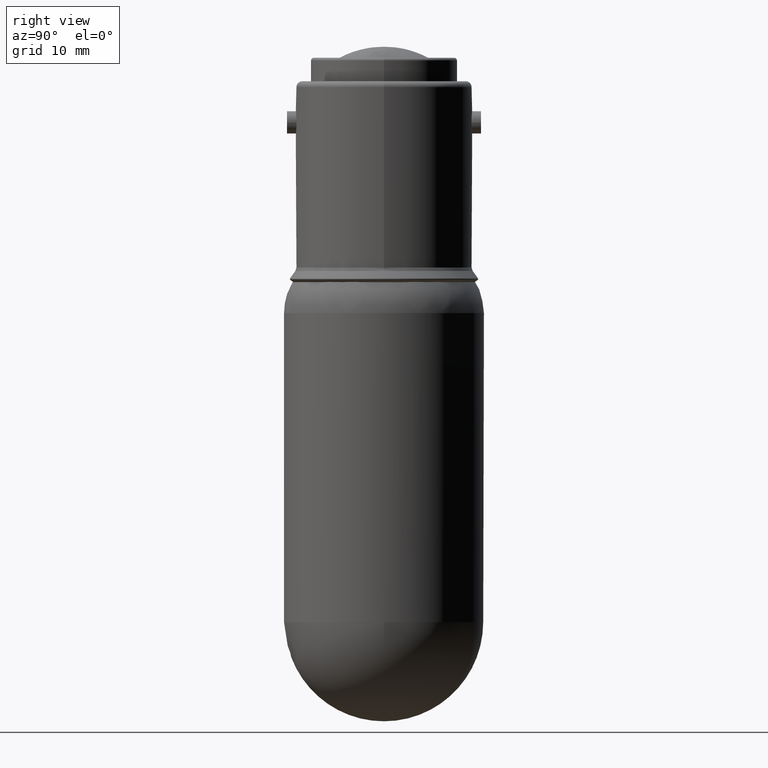
[diagram: clean part render]
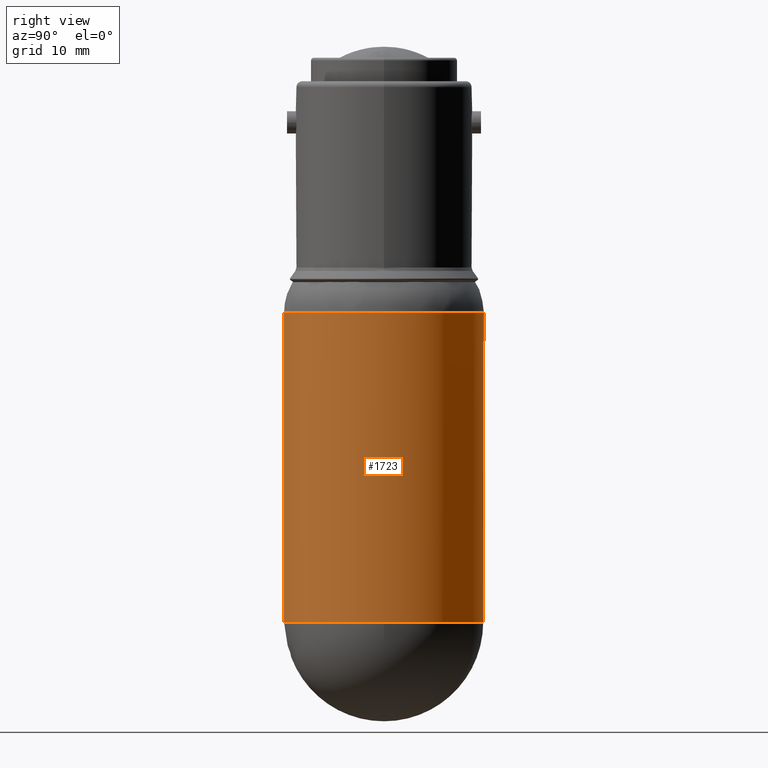
[diagram: same view with one face highlighted and labeled with its STEP entity id]
A machine part, right view. The second image highlights one B-rep face of the part: STEP entity #1723.
In plain terms, the highlighted cylindrical surface (bore or boss wall) has radius 8.5 mm, axis along (-0, 0, -1).
Its self-contained STEP definition (entity closure, byte-faithful):
#1689=CARTESIAN_POINT('',(-13.849487371039960,8.136423955264526,0.0));
#1690=VERTEX_POINT('',#1689);
#1691=CARTESIAN_POINT('',(-13.849487371039960,-0.363576044735471,0.0));
#1692=DIRECTION('',(1.0,0.0,0.0));
#1693=DIRECTION('',(0.0,1.0,0.0));
#1694=AXIS2_PLACEMENT_3D('',#1691,#1692,#1693);
#1695=CIRCLE('',#1694,8.499999999999998);
#1696=EDGE_CURVE('',#1690,#1690,#1695,.T.);
#1704=CARTESIAN_POINT('',(-0.709340425858760,-0.363576044735471,0.0));
#1705=DIRECTION('',(1.0,0.0,0.0));
#1706=DIRECTION('',(0.0,1.0,0.0));
#1707=AXIS2_PLACEMENT_3D('',#1704,#1705,#1706);
#1708=CYLINDRICAL_SURFACE('',#1707,8.500000000000000);
#1709=CARTESIAN_POINT('',(12.430806519322440,8.136423955264533,0.0));
#1710=VERTEX_POINT('',#1709);
#1711=CARTESIAN_POINT('',(12.430806519322440,-0.363576044735471,0.0));
#1712=DIRECTION('',(1.0,0.0,0.0));
#1713=DIRECTION('',(0.0,1.0,0.0));
#1714=AXIS2_PLACEMENT_3D('',#1711,#1712,#1713);
#1715=CIRCLE('',#1714,8.500000000000004);
#1716=EDGE_CURVE('',#1710,#1710,#1715,.T.);
#1717=ORIENTED_EDGE('',*,*,#1716,.F.);
#1718=EDGE_LOOP('',(#1717));
#1719=FACE_OUTER_BOUND('',#1718,.T.);
#1720=ORIENTED_EDGE('',*,*,#1696,.T.);
#1721=EDGE_LOOP('',(#1720));
#1722=FACE_BOUND('',#1721,.T.);
#1723=ADVANCED_FACE('',(#1719,#1722),#1708,.T.);